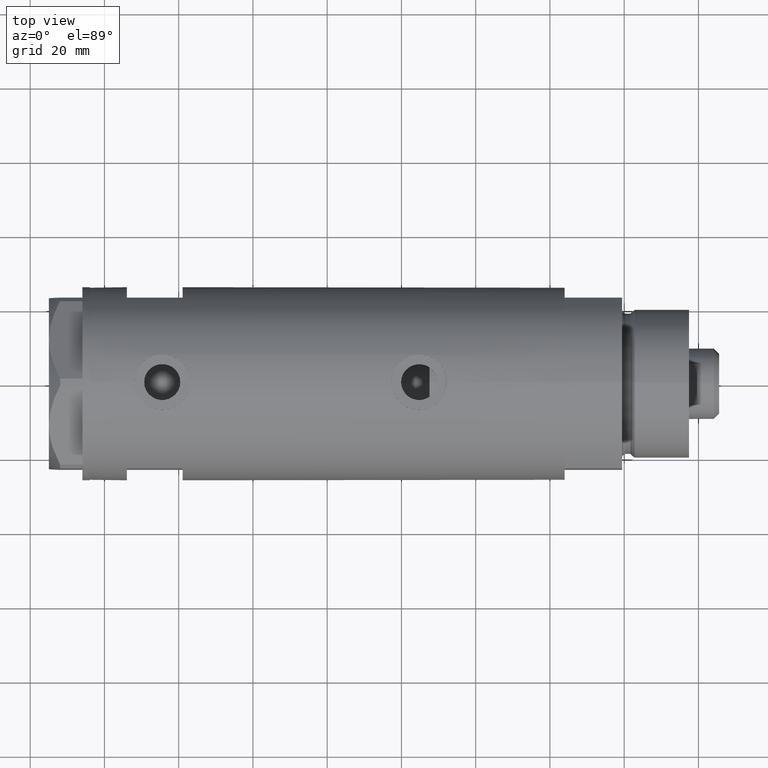
[diagram: clean part render]
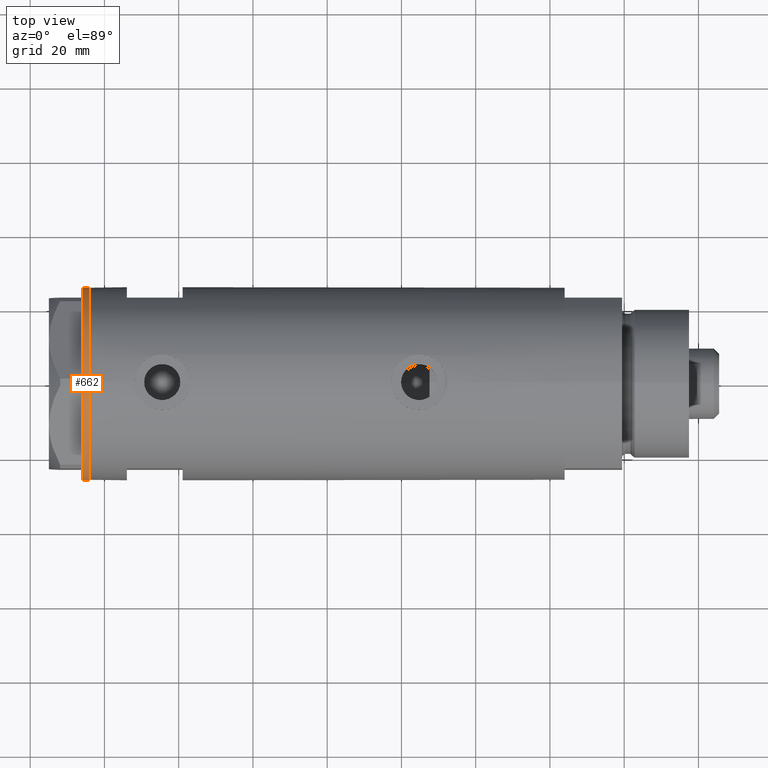
[diagram: same view with one face highlighted and labeled with its STEP entity id]
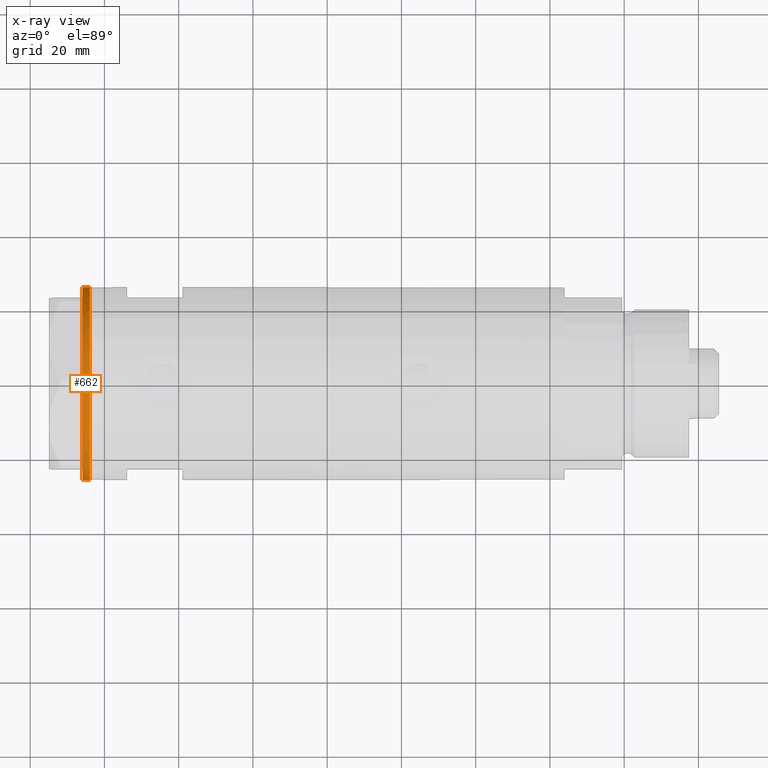
[diagram: x-ray of the same camera — body ghosted, the highlighted face saturated]
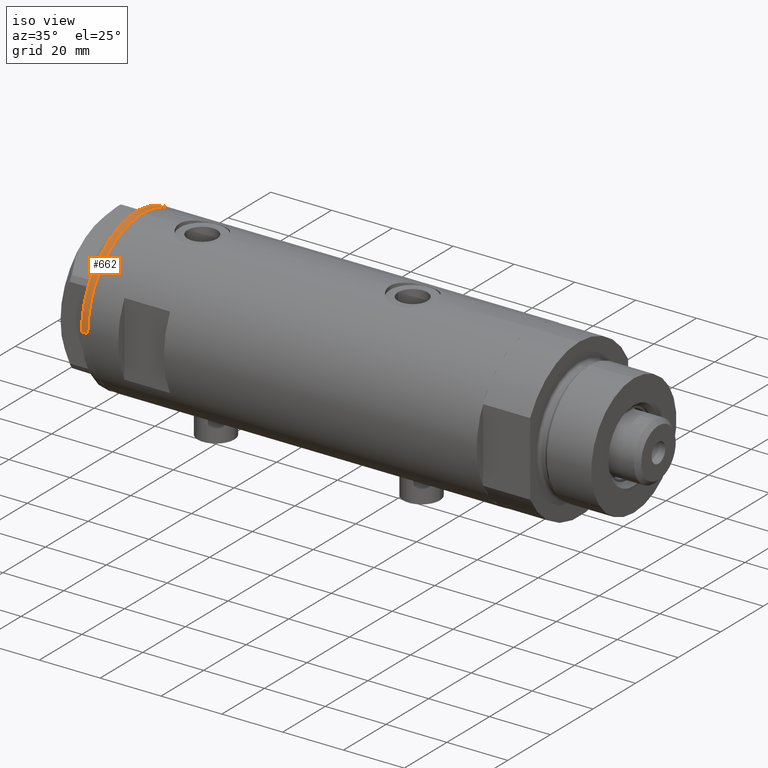
[diagram: same view with one face highlighted and labeled with its STEP entity id]
A machine part, top view. The second image highlights one B-rep face of the part: STEP entity #662.
The next image is the same camera in x-ray: the body ghosted, the highlighted face saturated — about 0% of this face is hidden behind the body in this view.
A second angle (iso view) of the same face is appended — the face is thin or edge-on in the first view.
In plain terms, the highlighted cylindrical surface (partial cylindrical patch) has radius 26 mm, axis along (-1, -0, 0).
Its self-contained STEP definition (entity closure, byte-faithful):
#28 = DIRECTION ( 'NONE',  ( 0.000000000000000000, 0.000000000000000000, -1.000000000000000000 ) ) ;
#30 = CARTESIAN_POINT ( 'NONE',  ( 0.000000000000000000, 0.000000000000000000, 0.000000000000000000 ) ) ;
#59 = CARTESIAN_POINT ( 'NONE',  ( 22.46498481720470863, -13.09076325594764079, 0.000000000000000000 ) ) ;
#75 = ORIENTED_EDGE ( 'NONE', *, *, #4172, .T. ) ;
#112 = DIRECTION ( 'NONE',  ( -1.000000000000000000, 0.000000000000000000, 0.000000000000000000 ) ) ;
#137 = CARTESIAN_POINT ( 'NONE',  ( 0.000000000000000000, 0.000000000000000000, 0.000000000000000000 ) ) ;
#141 = EDGE_CURVE ( 'NONE', #5026, #3421, #5106, .T. ) ;
#169 = LINE ( 'NONE', #4639, #5042 ) ;
#206 = VERTEX_POINT ( 'NONE', #628 ) ;
#292 = DIRECTION ( 'NONE',  ( 0.000000000000000000, 0.000000000000000000, -1.000000000000000000 ) ) ;
#301 = CARTESIAN_POINT ( 'NONE',  ( 0.3132930502243174709, -25.99811238272273428, 0.000000000000000000 ) ) ;
#366 = DIRECTION ( 'NONE',  ( -0.000000000000000000, -0.000000000000000000, 1.000000000000000000 ) ) ;
#368 = ORIENTED_EDGE ( 'NONE', *, *, #1527, .T. ) ;
#372 = VERTEX_POINT ( 'NONE', #834 ) ;
#377 = DIRECTION ( 'NONE',  ( 0.000000000000000000, 0.000000000000000000, -1.000000000000000000 ) ) ;
#386 = EDGE_CURVE ( 'NONE', #4016, #5109, #4272, .T. ) ;
#412 = EDGE_CURVE ( 'NONE', #4062, #1683, #2013, .T. ) ;
#432 = CARTESIAN_POINT ( 'NONE',  ( -22.99999999999990763, -12.12435565298232021, 0.000000000000000000 ) ) ;
#496 = CIRCLE ( 'NONE', #4181, 26.00000000000000355 ) ;
#514 = DIRECTION ( 'NONE',  ( -1.000000000000000000, 0.000000000000000000, 0.000000000000000000 ) ) ;
#546 = EDGE_CURVE ( 'NONE', #5109, #3488, #4495, .T. ) ;
#556 = VERTEX_POINT ( 'NONE', #432 ) ;
#628 = CARTESIAN_POINT ( 'NONE',  ( -26.00000000000000355, 3.184081677783118585E-15, 0.000000000000000000 ) ) ;
#662 = ADVANCED_FACE ( 'NONE', ( #2654 ), #1808, .T. ) ;
#676 = CARTESIAN_POINT ( 'NONE',  ( 0.000000000000000000, 0.000000000000000000, 0.000000000000000000 ) ) ;
#682 = DIRECTION ( 'NONE',  ( 0.000000000000000000, 0.000000000000000000, -1.000000000000000000 ) ) ;
#708 = VERTEX_POINT ( 'NONE', #1826 ) ;
#761 = AXIS2_PLACEMENT_3D ( 'NONE', #3894, #377, #2375 ) ;
#764 = CARTESIAN_POINT ( 'NONE',  ( 22.67167229899274616, -12.72773645103814211, 0.000000000000000000 ) ) ;
#782 = CARTESIAN_POINT ( 'NONE',  ( -26.00000000000000355, 3.184081677783118585E-15, -2.000000000000000000 ) ) ;
#827 = VERTEX_POINT ( 'NONE', #782 ) ;
#834 = CARTESIAN_POINT ( 'NONE',  ( 26.00000000000000355, 0.000000000000000000, 0.000000000000000000 ) ) ;
#872 = CARTESIAN_POINT ( 'NONE',  ( 22.35837924876884131, -13.27037593168418717, 0.000000000000000000 ) ) ;
#940 = CARTESIAN_POINT ( 'NONE',  ( 26.00000000000000355, 0.000000000000000000, -2.000000000000000000 ) ) ;
#954 = DIRECTION ( 'NONE',  ( 0.000000000000000000, 0.000000000000000000, -1.000000000000000000 ) ) ;
#1101 = DIRECTION ( 'NONE',  ( 1.000000000000000000, 0.000000000000000000, 0.000000000000000000 ) ) ;
#1125 = EDGE_CURVE ( 'NONE', #2068, #708, #3308, .T. ) ;
#1150 = EDGE_CURVE ( 'NONE', #2881, #5026, #5035, .T. ) ;
#1163 = CARTESIAN_POINT ( 'NONE',  ( -22.35837924876856064, -13.27037593168466501, 0.000000000000000000 ) ) ;
#1222 = CARTESIAN_POINT ( 'NONE',  ( -22.67167229899264669, -12.72773645103832507, 0.000000000000000000 ) ) ;
#1265 = CARTESIAN_POINT ( 'NONE',  ( 22.56942594318113748, -12.90986591935675065, 0.000000000000000000 ) ) ;
#1390 = ORIENTED_EDGE ( 'NONE', *, *, #546, .T. ) ;
#1405 = EDGE_CURVE ( 'NONE', #827, #206, #169, .T. ) ;
#1491 = CARTESIAN_POINT ( 'NONE',  ( -0.1044411259762646482, -26.00062917530481243, 0.000000000000000000 ) ) ;
#1506 = DIRECTION ( 'NONE',  ( -1.000000000000000000, 0.000000000000000000, 0.000000000000000000 ) ) ;
#1527 = EDGE_CURVE ( 'NONE', #556, #206, #3456, .T. ) ;
#1560 = EDGE_CURVE ( 'NONE', #3189, #372, #2409, .T. ) ;
#1588 = AXIS2_PLACEMENT_3D ( 'NONE', #30, #682, #1990 ) ;
#1589 = CARTESIAN_POINT ( 'NONE',  ( 26.00000000000000355, 0.000000000000000000, -2.000000000000000000 ) ) ;
#1617 = CARTESIAN_POINT ( 'NONE',  ( 22.67167229899274616, -12.72773645103814211, 0.000000000000000000 ) ) ;
#1633 = EDGE_CURVE ( 'NONE', #708, #2752, #5119, .T. ) ;
#1642 = DIRECTION ( 'NONE',  ( 0.000000000000000000, 0.000000000000000000, -1.000000000000000000 ) ) ;
#1644 = DIRECTION ( 'NONE',  ( 0.000000000000000000, 0.000000000000000000, -1.000000000000000000 ) ) ;
#1683 = VERTEX_POINT ( 'NONE', #3624 ) ;
#1717 = DIRECTION ( 'NONE',  ( -1.000000000000000000, 0.000000000000000000, 0.000000000000000000 ) ) ;
#1807 = CIRCLE ( 'NONE', #4414, 26.00000000000000355 ) ;
#1808 = CYLINDRICAL_SURFACE ( 'NONE', #5118, 26.00000000000000355 ) ;
#1826 = CARTESIAN_POINT ( 'NONE',  ( -0.3132930502238524539, -25.99811238272274139, 0.000000000000000000 ) ) ;
#1867 = DIRECTION ( 'NONE',  ( -0.000000000000000000, -0.000000000000000000, 1.000000000000000000 ) ) ;
#1990 = DIRECTION ( 'NONE',  ( -1.000000000000000000, 0.000000000000000000, 0.000000000000000000 ) ) ;
#2013 = CIRCLE ( 'NONE', #4957, 26.00000000000000355 ) ;
#2020 = CARTESIAN_POINT ( 'NONE',  ( 0.000000000000000000, 0.000000000000000000, 0.000000000000000000 ) ) ;
#2049 = ORIENTED_EDGE ( 'NONE', *, *, #1150, .T. ) ;
#2068 = VERTEX_POINT ( 'NONE', #4746 ) ;
#2146 = CARTESIAN_POINT ( 'NONE',  ( 0.000000000000000000, 0.000000000000000000, 0.000000000000000000 ) ) ;
#2217 = DIRECTION ( 'NONE',  ( -0.000000000000000000, -0.000000000000000000, 1.000000000000000000 ) ) ;
#2243 = ORIENTED_EDGE ( 'NONE', *, *, #386, .T. ) ;
#2287 = CIRCLE ( 'NONE', #2960, 26.00000000000000355 ) ;
#2375 = DIRECTION ( 'NONE',  ( -1.000000000000000000, 0.000000000000000000, 0.000000000000000000 ) ) ;
#2409 = LINE ( 'NONE', #1589, #4032 ) ;
#2452 = EDGE_CURVE ( 'NONE', #1683, #2068, #2535, .T. ) ;
#2507 = CIRCLE ( 'NONE', #3441, 26.00000000000000355 ) ;
#2535 = CIRCLE ( 'NONE', #761, 26.00000000000000355 ) ;
#2556 = CARTESIAN_POINT ( 'NONE',  ( 0.000000000000000000, 0.000000000000000000, -2.000000000000000000 ) ) ;
#2654 = FACE_OUTER_BOUND ( 'NONE', #3891, .T. ) ;
#2736 = CARTESIAN_POINT ( 'NONE',  ( 0.1044411259767168837, -26.00062917530480888, 0.000000000000000000 ) ) ;
#2752 = VERTEX_POINT ( 'NONE', #4161 ) ;
#2764 = AXIS2_PLACEMENT_3D ( 'NONE', #4847, #4512, #3227 ) ;
#2881 = VERTEX_POINT ( 'NONE', #4756 ) ;
#2945 = AXIS2_PLACEMENT_3D ( 'NONE', #3851, #1644, #4011 ) ;
#2960 = AXIS2_PLACEMENT_3D ( 'NONE', #3458, #5050, #3381 ) ;
#2977 = CARTESIAN_POINT ( 'NONE',  ( -22.67167229899264669, -12.72773645103832507, 0.000000000000000000 ) ) ;
#2989 = ORIENTED_EDGE ( 'NONE', *, *, #141, .T. ) ;
#2998 = CARTESIAN_POINT ( 'NONE',  ( 22.00000000000017053, -13.85640646055075464, 0.000000000000000000 ) ) ;
#3189 = VERTEX_POINT ( 'NONE', #940 ) ;
#3227 = DIRECTION ( 'NONE',  ( -1.000000000000000000, 0.000000000000000000, 0.000000000000000000 ) ) ;
#3239 = CARTESIAN_POINT ( 'NONE',  ( 22.35837924876884131, -13.27037593168418717, 0.000000000000000000 ) ) ;
#3308 = B_SPLINE_CURVE_WITH_KNOTS ( 'NONE', 3,
 ( #301, #2736, #1491, #3969 ),
 .UNSPECIFIED., .F., .F.,
 ( 4, 4 ),
 ( 0.000000000000000000, 1.000000000000000000 ),
 .UNSPECIFIED. ) ;
#3381 = DIRECTION ( 'NONE',  ( -1.000000000000000000, 0.000000000000000000, 0.000000000000000000 ) ) ;
#3421 = VERTEX_POINT ( 'NONE', #872 ) ;
#3441 = AXIS2_PLACEMENT_3D ( 'NONE', #4878, #954, #514 ) ;
#3456 = CIRCLE ( 'NONE', #1588, 26.00000000000000355 ) ;
#3458 = CARTESIAN_POINT ( 'NONE',  ( 0.000000000000000000, 0.000000000000000000, 0.000000000000000000 ) ) ;
#3488 = VERTEX_POINT ( 'NONE', #2977 ) ;
#3558 = CARTESIAN_POINT ( 'NONE',  ( 0.000000000000000000, 0.000000000000000000, 0.000000000000000000 ) ) ;
#3623 = EDGE_CURVE ( 'NONE', #3421, #4062, #2287, .T. ) ;
#3624 = CARTESIAN_POINT ( 'NONE',  ( 1.000000000000106803, -25.98076211353316367, 0.000000000000000000 ) ) ;
#3627 = ORIENTED_EDGE ( 'NONE', *, *, #3623, .T. ) ;
#3653 = ORIENTED_EDGE ( 'NONE', *, *, #1633, .T. ) ;
#3659 = ORIENTED_EDGE ( 'NONE', *, *, #412, .T. ) ;
#3690 = AXIS2_PLACEMENT_3D ( 'NONE', #2020, #28, #1506 ) ;
#3698 = ORIENTED_EDGE ( 'NONE', *, *, #1560, .T. ) ;
#3718 = CARTESIAN_POINT ( 'NONE',  ( -22.35837924876856064, -13.27037593168466501, 0.000000000000000000 ) ) ;
#3741 = DIRECTION ( 'NONE',  ( 0.000000000000000000, 0.000000000000000000, -1.000000000000000000 ) ) ;
#3851 = CARTESIAN_POINT ( 'NONE',  ( 0.000000000000000000, 0.000000000000000000, 0.000000000000000000 ) ) ;
#3891 = EDGE_LOOP ( 'NONE', ( #3974, #4033, #3698, #75, #2049, #2989, #3627, #3659, #4807, #4177, #3653, #3895, #2243, #1390, #4079, #368 ) ) ;
#3894 = CARTESIAN_POINT ( 'NONE',  ( 0.000000000000000000, 0.000000000000000000, 0.000000000000000000 ) ) ;
#3895 = ORIENTED_EDGE ( 'NONE', *, *, #4828, .T. ) ;
#3915 = CARTESIAN_POINT ( 'NONE',  ( -22.46498481720448481, -13.09076325594801915, 0.000000000000000000 ) ) ;
#3969 = CARTESIAN_POINT ( 'NONE',  ( -0.3132930502238524539, -25.99811238272274139, 0.000000000000000000 ) ) ;
#3974 = ORIENTED_EDGE ( 'NONE', *, *, #1405, .F. ) ;
#4011 = DIRECTION ( 'NONE',  ( -1.000000000000000000, 0.000000000000000000, 0.000000000000000000 ) ) ;
#4016 = VERTEX_POINT ( 'NONE', #4154 ) ;
#4032 = VECTOR ( 'NONE', #1867, 1000.000000000000000 ) ;
#4033 = ORIENTED_EDGE ( 'NONE', *, *, #5107, .F. ) ;
#4062 = VERTEX_POINT ( 'NONE', #2998 ) ;
#4079 = ORIENTED_EDGE ( 'NONE', *, *, #5122, .T. ) ;
#4154 = CARTESIAN_POINT ( 'NONE',  ( -21.99999999999998224, -13.85640646055105485, 0.000000000000000000 ) ) ;
#4161 = CARTESIAN_POINT ( 'NONE',  ( -0.9999999999997406519, -25.98076211353317433, 0.000000000000000000 ) ) ;
#4172 = EDGE_CURVE ( 'NONE', #372, #2881, #1807, .T. ) ;
#4177 = ORIENTED_EDGE ( 'NONE', *, *, #1125, .T. ) ;
#4181 = AXIS2_PLACEMENT_3D ( 'NONE', #3558, #5155, #4333 ) ;
#4272 = CIRCLE ( 'NONE', #3690, 26.00000000000000355 ) ;
#4333 = DIRECTION ( 'NONE',  ( -1.000000000000000000, 0.000000000000000000, 0.000000000000000000 ) ) ;
#4345 = CIRCLE ( 'NONE', #4439, 26.00000000000000355 ) ;
#4414 = AXIS2_PLACEMENT_3D ( 'NONE', #676, #292, #4730 ) ;
#4439 = AXIS2_PLACEMENT_3D ( 'NONE', #2146, #3741, #1717 ) ;
#4495 = B_SPLINE_CURVE_WITH_KNOTS ( 'NONE', 3,
 ( #1163, #3915, #4794, #1222 ),
 .UNSPECIFIED., .F., .F.,
 ( 4, 4 ),
 ( 0.000000000000000000, 1.000000000000000000 ),
 .UNSPECIFIED. ) ;
#4512 = DIRECTION ( 'NONE',  ( 0.000000000000000000, 0.000000000000000000, -1.000000000000000000 ) ) ;
#4639 = CARTESIAN_POINT ( 'NONE',  ( -26.00000000000000355, 3.184081677783118585E-15, -2.000000000000000000 ) ) ;
#4730 = DIRECTION ( 'NONE',  ( -1.000000000000000000, 0.000000000000000000, 0.000000000000000000 ) ) ;
#4746 = CARTESIAN_POINT ( 'NONE',  ( 0.3132930502243174709, -25.99811238272273428, 0.000000000000000000 ) ) ;
#4756 = CARTESIAN_POINT ( 'NONE',  ( 23.00000000000007461, -12.12435565298200224, 0.000000000000000000 ) ) ;
#4794 = CARTESIAN_POINT ( 'NONE',  ( -22.56942594318098116, -12.90986591935703665, 0.000000000000000000 ) ) ;
#4807 = ORIENTED_EDGE ( 'NONE', *, *, #2452, .T. ) ;
#4828 = EDGE_CURVE ( 'NONE', #2752, #4016, #496, .T. ) ;
#4847 = CARTESIAN_POINT ( 'NONE',  ( 0.000000000000000000, 0.000000000000000000, 0.000000000000000000 ) ) ;
#4878 = CARTESIAN_POINT ( 'NONE',  ( 0.000000000000000000, 0.000000000000000000, -2.000000000000000000 ) ) ;
#4957 = AXIS2_PLACEMENT_3D ( 'NONE', #137, #1642, #112 ) ;
#5026 = VERTEX_POINT ( 'NONE', #764 ) ;
#5035 = CIRCLE ( 'NONE', #2764, 26.00000000000000355 ) ;
#5042 = VECTOR ( 'NONE', #2217, 1000.000000000000000 ) ;
#5050 = DIRECTION ( 'NONE',  ( 0.000000000000000000, 0.000000000000000000, -1.000000000000000000 ) ) ;
#5106 = B_SPLINE_CURVE_WITH_KNOTS ( 'NONE', 3,
 ( #1617, #1265, #59, #3239 ),
 .UNSPECIFIED., .F., .F.,
 ( 4, 4 ),
 ( 0.000000000000000000, 1.000000000000000000 ),
 .UNSPECIFIED. ) ;
#5107 = EDGE_CURVE ( 'NONE', #3189, #827, #2507, .T. ) ;
#5109 = VERTEX_POINT ( 'NONE', #3718 ) ;
#5118 = AXIS2_PLACEMENT_3D ( 'NONE', #2556, #366, #1101 ) ;
#5119 = CIRCLE ( 'NONE', #2945, 26.00000000000000355 ) ;
#5122 = EDGE_CURVE ( 'NONE', #3488, #556, #4345, .T. ) ;
#5155 = DIRECTION ( 'NONE',  ( 0.000000000000000000, 0.000000000000000000, -1.000000000000000000 ) ) ;